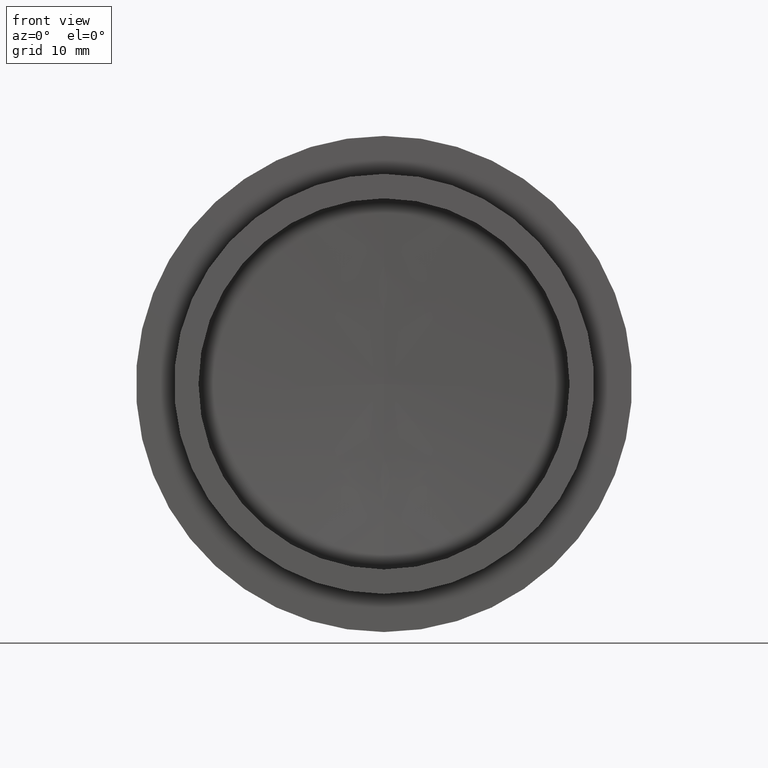
[diagram: clean part render]
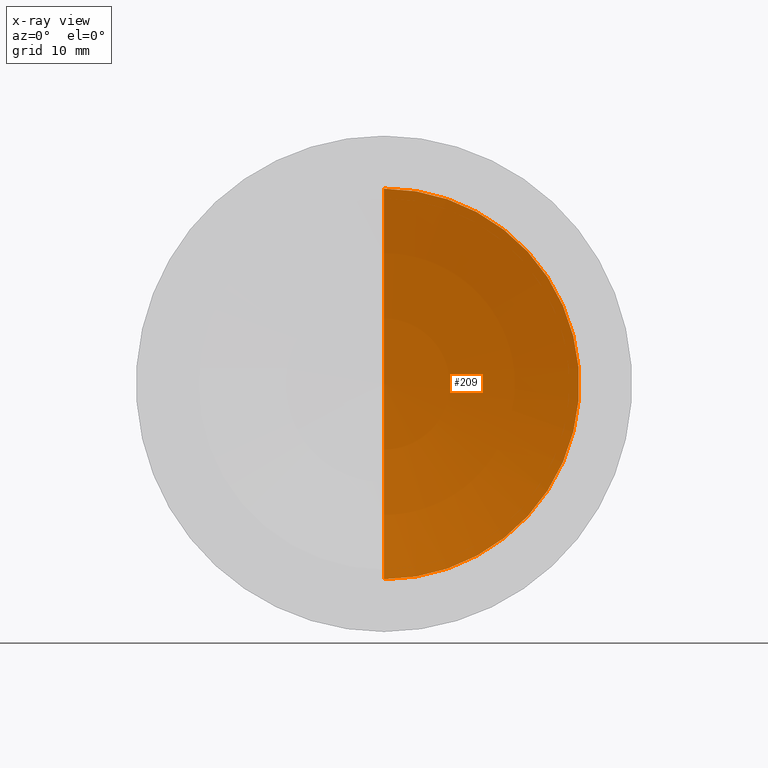
[diagram: x-ray — body ghosted, one internal face saturated and labeled with its STEP entity id]
A machine part, front view, then the same camera in x-ray: the body is ghosted and one INTERNAL B-rep face — a face not visible from any outside direction — is saturated and labeled: STEP entity #209.
In plain terms, the highlighted spherical surface has radius 90.5 mm.
Its self-contained STEP definition (entity closure, byte-faithful):
#16 = FACE_OUTER_BOUND ( 'NONE', #161, .T. ) ;
#116 = EDGE_CURVE ( 'NONE', #532, #1134, #1125, .T. ) ;
#131 = ORIENTED_EDGE ( 'NONE', *, *, #116, .F. ) ;
#161 = EDGE_LOOP ( 'NONE', ( #453, #131 ) ) ;
#197 = CARTESIAN_POINT ( 'NONE',  ( -8.905217641199635992, -16.92916530104155015, 46.65036394347453808 ) ) ;
#209 = ADVANCED_FACE ( 'NONE', ( #16 ), #1232, .F. ) ;
#227 = AXIS2_PLACEMENT_3D ( 'NONE', #1143, #837, #701 ) ;
#234 = CIRCLE ( 'NONE', #1141, 90.50000000000000000 ) ;
#237 = DIRECTION ( 'NONE',  ( 1.000000000000000000, 1.224646799147352961E-16, 1.224646799147351975E-16 ) ) ;
#385 = CARTESIAN_POINT ( 'NONE',  ( -8.905217641199632439, -16.92916530104155015, 6.650363943474537187 ) ) ;
#453 = ORIENTED_EDGE ( 'NONE', *, *, #719, .F. ) ;
#532 = VERTEX_POINT ( 'NONE', #197 ) ;
#540 = AXIS2_PLACEMENT_3D ( 'NONE', #688, #865, #1222 ) ;
#688 = CARTESIAN_POINT ( 'NONE',  ( -8.905217641199635992, -16.92916530104155015, 26.65036394347453097 ) ) ;
#701 = DIRECTION ( 'NONE',  ( 0.000000000000000000, 0.000000000000000000, 1.000000000000000000 ) ) ;
#719 = EDGE_CURVE ( 'NONE', #1134, #532, #234, .T. ) ;
#837 = DIRECTION ( 'NONE',  ( 1.224646799147353207E-16, -1.000000000000000000, 0.000000000000000000 ) ) ;
#865 = DIRECTION ( 'NONE',  ( -1.224646799147353207E-16, 1.000000000000000000, 0.000000000000000000 ) ) ;
#1016 = DIRECTION ( 'NONE',  ( -1.150092912249816941E-16, 0.000000000000000000, 1.000000000000000000 ) ) ;
#1125 = CIRCLE ( 'NONE', #540, 20.00000000000000355 ) ;
#1134 = VERTEX_POINT ( 'NONE', #385 ) ;
#1137 = CARTESIAN_POINT ( 'NONE',  ( -8.905217641199627110, -105.1915581985831665, 26.65036394347451676 ) ) ;
#1141 = AXIS2_PLACEMENT_3D ( 'NONE', #1137, #237, #1016 ) ;
#1143 = CARTESIAN_POINT ( 'NONE',  ( -8.905217641199627110, -105.1915581985831665, 26.65036394347451676 ) ) ;
#1222 = DIRECTION ( 'NONE',  ( 0.000000000000000000, 0.000000000000000000, 1.000000000000000000 ) ) ;
#1232 = SPHERICAL_SURFACE ( 'NONE', #227, 90.50000000000000000 ) ;